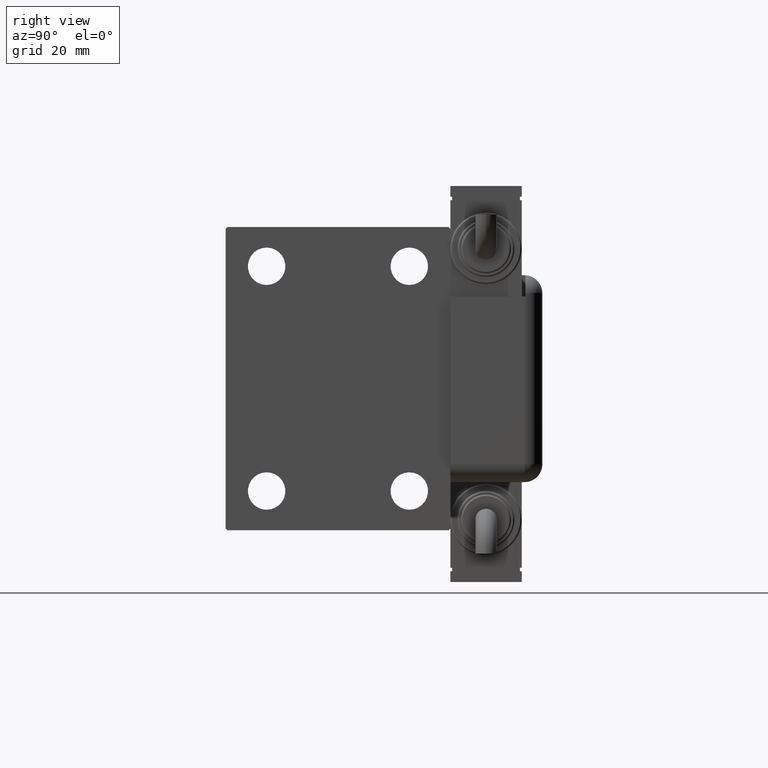
[diagram: clean part render]
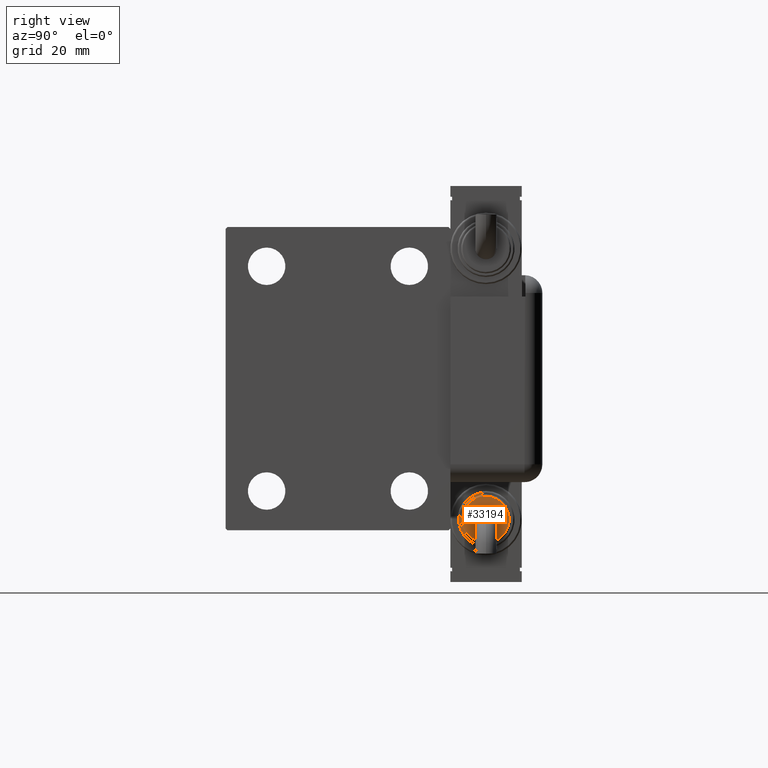
[diagram: same view with one face highlighted and labeled with its STEP entity id]
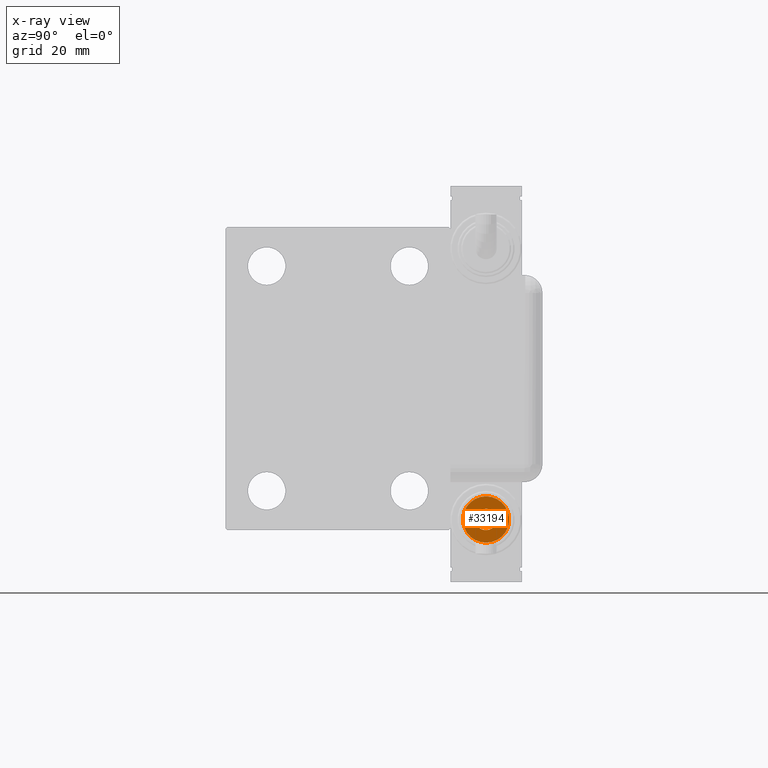
[diagram: x-ray of the same camera — body ghosted, the highlighted face saturated]
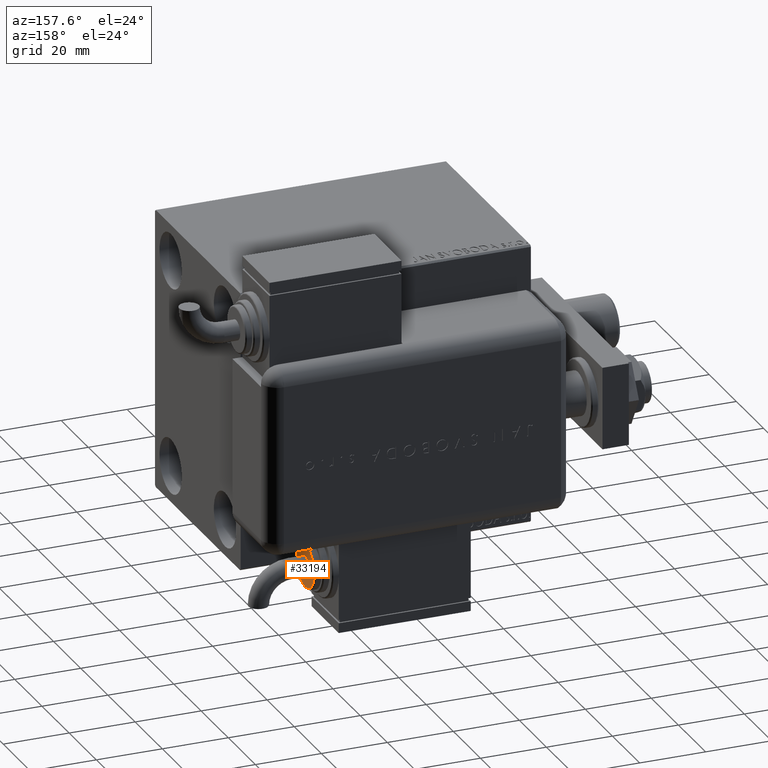
[diagram: same view with one face highlighted and labeled with its STEP entity id]
A machine part, right view. The second image highlights one B-rep face of the part: STEP entity #33194.
The next image is the same camera in x-ray: the body ghosted, the highlighted face saturated — about 0% of this face is hidden behind the body in this view.
A second angle (auxiliary view) of the same face is appended — the face is thin or edge-on in the first view.
In plain terms, the highlighted planar face has unit normal (1, 0, -0).
Its self-contained STEP definition (entity closure, byte-faithful):
#392 = DIRECTION ( 'NONE',  ( 1.000000000000000000, 1.025520576932673761E-15, 0.000000000000000000 ) ) ;
#778 = EDGE_CURVE ( 'NONE', #17664, #27783, #41244, .T. ) ;
#967 = EDGE_CURVE ( 'NONE', #27783, #17664, #49976, .T. ) ;
#1473 = FACE_BOUND ( 'NONE', #2055, .T. ) ;
#2055 = EDGE_LOOP ( 'NONE', ( #3048, #47526 ) ) ;
#3048 = ORIENTED_EDGE ( 'NONE', *, *, #11211, .T. ) ;
#4286 = AXIS2_PLACEMENT_3D ( 'NONE', #31062, #45060, #26498 ) ;
#6941 = CARTESIAN_POINT ( 'NONE',  ( -25.99999999999993960, 3.340948916696086625E-15, 0.000000000000000000 ) ) ;
#8798 = DIRECTION ( 'NONE',  ( 0.000000000000000000, -1.000000000000000000, 0.000000000000000000 ) ) ;
#10111 = AXIS2_PLACEMENT_3D ( 'NONE', #12474, #18847, #8798 ) ;
#10433 = CARTESIAN_POINT ( 'NONE',  ( -25.99999999999993960, 2.081668171172168829E-14, 2.999999999999997335 ) ) ;
#11211 = EDGE_CURVE ( 'NONE', #58924, #13767, #14412, .T. ) ;
#12474 = CARTESIAN_POINT ( 'NONE',  ( -25.99999999999993960, 3.340948916696086231E-15, 0.000000000000000000 ) ) ;
#13767 = VERTEX_POINT ( 'NONE', #46515 ) ;
#14234 = CARTESIAN_POINT ( 'NONE',  ( -25.99999999999993960, 6.500000000000002665, 8.266365894244633347E-16 ) ) ;
#14412 = CIRCLE ( 'NONE', #59126, 2.999999999999996003 ) ;
#15253 = DIRECTION ( 'NONE',  ( 1.000000000000000000, 1.025520576932673761E-15, 0.000000000000000000 ) ) ;
#17664 = VERTEX_POINT ( 'NONE', #26986 ) ;
#18847 = DIRECTION ( 'NONE',  ( -1.000000000000000000, 1.284980352575421081E-16, 0.000000000000000000 ) ) ;
#23058 = ORIENTED_EDGE ( 'NONE', *, *, #967, .T. ) ;
#24690 = CARTESIAN_POINT ( 'NONE',  ( -25.99999999999993960, 2.081668171172168513E-14, 0.000000000000000000 ) ) ;
#25842 = DIRECTION ( 'NONE',  ( -1.000000000000000000, 1.284980352575421081E-16, 0.000000000000000000 ) ) ;
#26498 = DIRECTION ( 'NONE',  ( 0.000000000000000000, -1.000000000000000000, 0.000000000000000000 ) ) ;
#26986 = CARTESIAN_POINT ( 'NONE',  ( -25.99999999999993960, -6.499999999999995559, 0.000000000000000000 ) ) ;
#27783 = VERTEX_POINT ( 'NONE', #14234 ) ;
#28362 = CIRCLE ( 'NONE', #57518, 2.999999999999996003 ) ;
#31062 = CARTESIAN_POINT ( 'NONE',  ( -25.99999999999993960, 3.340948916696086231E-15, 0.000000000000000000 ) ) ;
#33194 = ADVANCED_FACE ( 'NONE', ( #1473, #44103 ), #48965, .T. ) ;
#34082 = DIRECTION ( 'NONE',  ( -1.284980352575421081E-16, -1.000000000000000000, 0.000000000000000000 ) ) ;
#40308 = ORIENTED_EDGE ( 'NONE', *, *, #778, .T. ) ;
#41244 = CIRCLE ( 'NONE', #4286, 6.499999999999999112 ) ;
#43270 = EDGE_LOOP ( 'NONE', ( #40308, #23058 ) ) ;
#44103 = FACE_OUTER_BOUND ( 'NONE', #43270, .T. ) ;
#45060 = DIRECTION ( 'NONE',  ( -1.000000000000000000, 1.284980352575421081E-16, 0.000000000000000000 ) ) ;
#46515 = CARTESIAN_POINT ( 'NONE',  ( -25.99999999999993960, 2.118407575146589373E-14, -2.999999999999997335 ) ) ;
#47526 = ORIENTED_EDGE ( 'NONE', *, *, #59150, .T. ) ;
#48965 = PLANE ( 'NONE',  #54483 ) ;
#49976 = CIRCLE ( 'NONE', #10111, 6.499999999999999112 ) ;
#51856 = DIRECTION ( 'NONE',  ( -1.156482317317872908E-15, 1.000000000000000000, 0.000000000000000000 ) ) ;
#52380 = DIRECTION ( 'NONE',  ( -1.156482317317872908E-15, 1.000000000000000000, 0.000000000000000000 ) ) ;
#54483 = AXIS2_PLACEMENT_3D ( 'NONE', #6941, #25842, #34082 ) ;
#56123 = CARTESIAN_POINT ( 'NONE',  ( -25.99999999999993960, 2.081668171172168513E-14, 0.000000000000000000 ) ) ;
#57518 = AXIS2_PLACEMENT_3D ( 'NONE', #24690, #15253, #52380 ) ;
#58924 = VERTEX_POINT ( 'NONE', #10433 ) ;
#59126 = AXIS2_PLACEMENT_3D ( 'NONE', #56123, #392, #51856 ) ;
#59150 = EDGE_CURVE ( 'NONE', #13767, #58924, #28362, .T. ) ;